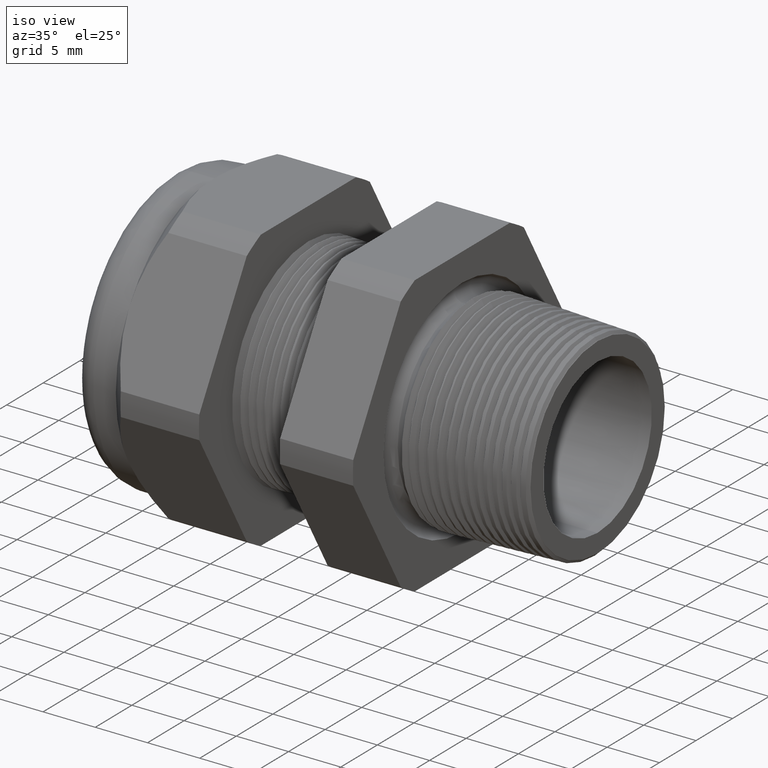
[diagram: clean part render]
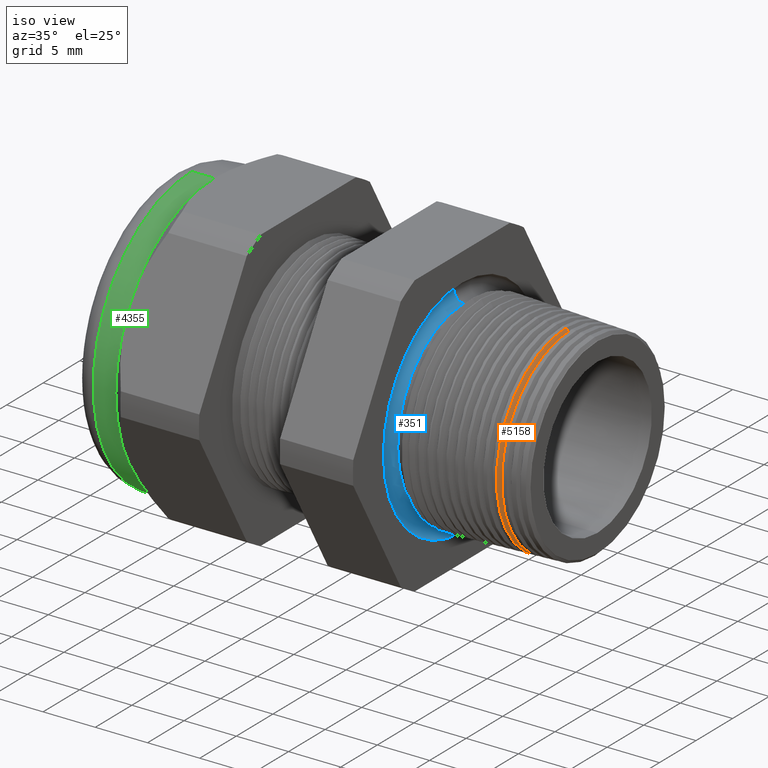
[diagram: same view with three faces highlighted in distinct colors, each labeled with its STEP entity id]
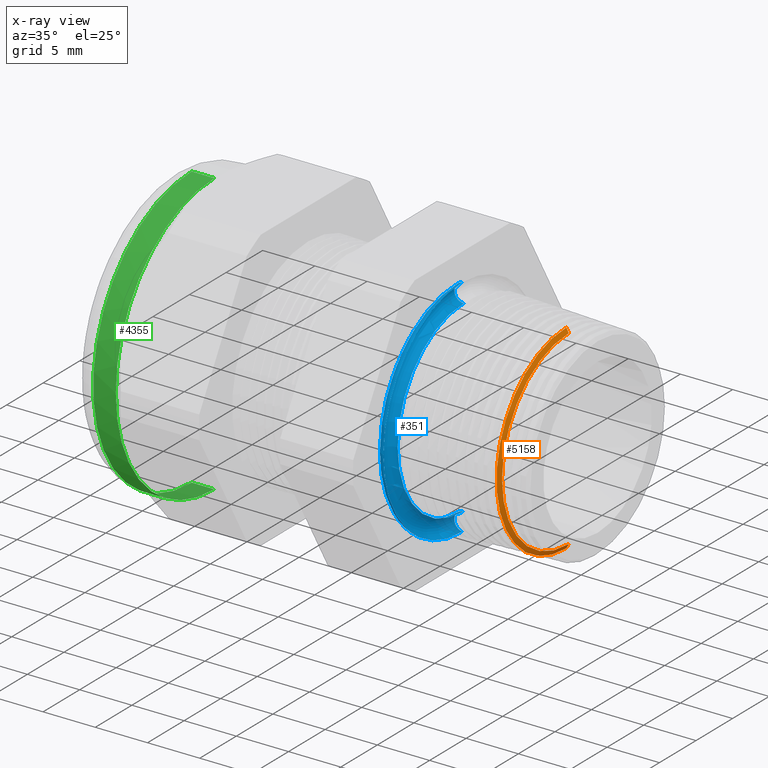
[diagram: x-ray of the same camera — body ghosted, the three highlighted faces saturated]
A machine part, iso view with three faces highlighted in distinct colors.
The next image is the same camera in x-ray (body ghosted, the three faces saturated) — at least one of them is partly hidden behind the body in this view.
Their STEP definitions:

[orange] entity #5158 — the highlighted conical surface has half-angle 62 deg.
#15 = EDGE_CURVE ( 'NONE', #167, #445, #592, .T. ) ;
#94 = EDGE_CURVE ( 'NONE', #377, #167, #667, .T. ) ;
#167 = VERTEX_POINT ( 'NONE', #802 ) ;
#377 = VERTEX_POINT ( 'NONE', #1201 ) ;
#386 = VERTEX_POINT ( 'NONE', #1180 ) ;
#445 = VERTEX_POINT ( 'NONE', #1400 ) ;
#449 = EDGE_CURVE ( 'NONE', #386, #445, #1399, .T. ) ;
#588 = DIRECTION ( 'NONE',  ( 0.0000000000000000000, 0.0000000000000000000, 1.000000000000000000 ) ) ;
#589 = DIRECTION ( 'NONE',  ( 1.000000000000000000, 0.0000000000000000000, 0.0000000000000000000 ) ) ;
#590 = CARTESIAN_POINT ( 'NONE',  ( 0.08228380906208868100, 0.0000000000000000000, 0.0000000000000000000 ) ) ;
#591 = AXIS2_PLACEMENT_3D ( 'NONE', #590, #589, #588 ) ;
#592 = CIRCLE ( 'NONE', #591, 0.3760361025556350800 ) ;
#664 = DIRECTION ( 'NONE',  ( -0.4694715627859021900, 0.0000000000000000000, 0.8829475928589208800 ) ) ;
#665 = VECTOR ( 'NONE', #664, 39.37007874015748100 ) ;
#666 = CARTESIAN_POINT ( 'NONE',  ( 0.07500000000000015000, 0.0000000000000000000, 0.3897349550272340400 ) ) ;
#667 = LINE ( 'NONE', #666, #665 ) ;
#802 = CARTESIAN_POINT ( 'NONE',  ( 0.08228380906208868100, 0.0000000000000000000, 0.3760361025556350800 ) ) ;
#1180 = CARTESIAN_POINT ( 'NONE',  ( 0.09126297198907908100, 4.501708901927134300E-017, -0.3591487532021881400 ) ) ;
#1201 = CARTESIAN_POINT ( 'NONE',  ( 0.09126297198907908100, 0.0000000000000000000, 0.3591487532021881400 ) ) ;
#1396 = DIRECTION ( 'NONE',  ( -0.4694715627859021900, 1.081298943409537900E-016, -0.8829475928589208800 ) ) ;
#1397 = VECTOR ( 'NONE', #1396, 39.37007874015748100 ) ;
#1398 = CARTESIAN_POINT ( 'NONE',  ( 0.07500000000000015000, 4.772876651899397700E-017, -0.3897349550272340400 ) ) ;
#1399 = LINE ( 'NONE', #1398, #1397 ) ;
#1400 = CARTESIAN_POINT ( 'NONE',  ( 0.08228380906208868100, 4.608351048649217600E-017, -0.3760361025556350800 ) ) ;
#3424 = DIRECTION ( 'NONE',  ( 0.0000000000000000000, 0.0000000000000000000, -1.000000000000000000 ) ) ;
#3425 = DIRECTION ( 'NONE',  ( 1.000000000000000000, 0.0000000000000000000, 0.0000000000000000000 ) ) ;
#3426 = AXIS2_PLACEMENT_3D ( 'NONE', #3432, #3425, #3424 ) ;
#3427 = CIRCLE ( 'NONE', #3426, 0.3591487532021881400 ) ;
#3428 = DIRECTION ( 'NONE',  ( 0.0000000000000000000, 0.0000000000000000000, 1.000000000000000000 ) ) ;
#3429 = DIRECTION ( 'NONE',  ( -1.000000000000000000, 0.0000000000000000000, 0.0000000000000000000 ) ) ;
#3430 = AXIS2_PLACEMENT_3D ( 'NONE', #3433, #3429, #3428 ) ;
#3431 = CONICAL_SURFACE ( 'NONE', #3430, 0.3897349550272340400, 1.082104136236471400 ) ;
#3432 = CARTESIAN_POINT ( 'NONE',  ( 0.09126297198907908100, 0.0000000000000000000, 0.0000000000000000000 ) ) ;
#3433 = CARTESIAN_POINT ( 'NONE',  ( 0.07500000000000015000, 0.0000000000000000000, 0.0000000000000000000 ) ) ;
#3439 = FACE_OUTER_BOUND ( 'NONE', #5159, .T. ) ;
#5158 = ADVANCED_FACE ( 'NONE', ( #3439 ), #3431, .T. ) ;
#5159 = EDGE_LOOP ( 'NONE', ( #5160, #5161, #5163, #5164 ) ) ;
#5160 = ORIENTED_EDGE ( 'NONE', *, *, #449, .F. ) ;
#5161 = ORIENTED_EDGE ( 'NONE', *, *, #5162, .F. ) ;
#5162 = EDGE_CURVE ( 'NONE', #377, #386, #3427, .T. ) ;
#5163 = ORIENTED_EDGE ( 'NONE', *, *, #94, .T. ) ;
#5164 = ORIENTED_EDGE ( 'NONE', *, *, #15, .T. ) ;

[blue] entity #351 — the highlighted toroidal blend (fillet) surface has major radius 9.8993 mm and minor (blend) radius 0.889 mm.
#250 = VERTEX_POINT ( 'NONE', #914 ) ;
#291 = EDGE_CURVE ( 'NONE', #306, #363, #1043, .T. ) ;
#292 = ORIENTED_EDGE ( 'NONE', *, *, #297, .F. ) ;
#293 = EDGE_CURVE ( 'NONE', #250, #306, #1038, .T. ) ;
#297 = EDGE_CURVE ( 'NONE', #324, #363, #1021, .T. ) ;
#299 = EDGE_CURVE ( 'NONE', #250, #324, #1015, .T. ) ;
#303 = ORIENTED_EDGE ( 'NONE', *, *, #293, .T. ) ;
#306 = VERTEX_POINT ( 'NONE', #1009 ) ;
#307 = EDGE_LOOP ( 'NONE', ( #352, #303, #362, #292 ) ) ;
#324 = VERTEX_POINT ( 'NONE', #1046 ) ;
#351 = ADVANCED_FACE ( 'NONE', ( #1122 ), #1117, .F. ) ;
#352 = ORIENTED_EDGE ( 'NONE', *, *, #299, .F. ) ;
#362 = ORIENTED_EDGE ( 'NONE', *, *, #291, .T. ) ;
#363 = VERTEX_POINT ( 'NONE', #1159 ) ;
#914 = CARTESIAN_POINT ( 'NONE',  ( -0.3049999999999998300, 4.344250272197825000E-017, 0.3547349550272340700 ) ) ;
#1009 = CARTESIAN_POINT ( 'NONE',  ( -0.3100000000000000000, 5.197106747389359900E-017, 0.4243759711786115300 ) ) ;
#1011 = DIRECTION ( 'NONE',  ( 0.0000000000000000000, 0.0000000000000000000, -1.000000000000000000 ) ) ;
#1012 = DIRECTION ( 'NONE',  ( 1.000000000000000000, 0.0000000000000000000, 0.0000000000000000000 ) ) ;
#1013 = CARTESIAN_POINT ( 'NONE',  ( -0.3049999999999998300, 0.0000000000000000000, 0.0000000000000000000 ) ) ;
#1014 = AXIS2_PLACEMENT_3D ( 'NONE', #1013, #1012, #1011 ) ;
#1015 = CIRCLE ( 'NONE', #1014, 0.3547349550272340700 ) ;
#1018 = DIRECTION ( 'NONE',  ( 0.0000000000000000000, 0.0000000000000000000, -1.000000000000000000 ) ) ;
#1019 = DIRECTION ( 'NONE',  ( 0.0000000000000000000, -1.000000000000000000, 0.0000000000000000000 ) ) ;
#1020 = AXIS2_PLACEMENT_3D ( 'NONE', #1028, #1019, #1018 ) ;
#1021 = CIRCLE ( 'NONE', #1020, 0.03499999999999996900 ) ;
#1028 = CARTESIAN_POINT ( 'NONE',  ( -0.3049999999999998300, 0.0000000000000000000, -0.3897349550272340400 ) ) ;
#1034 = DIRECTION ( 'NONE',  ( 0.0000000000000000000, 1.224646799147352700E-016, 1.000000000000000000 ) ) ;
#1035 = DIRECTION ( 'NONE',  ( 0.0000000000000000000, 1.000000000000000000, -1.224646799147353200E-016 ) ) ;
#1036 = CARTESIAN_POINT ( 'NONE',  ( -0.3049999999999998300, 4.772876651899397700E-017, 0.3897349550272340400 ) ) ;
#1037 = AXIS2_PLACEMENT_3D ( 'NONE', #1036, #1035, #1034 ) ;
#1038 = CIRCLE ( 'NONE', #1037, 0.03499999999999996900 ) ;
#1039 = DIRECTION ( 'NONE',  ( 0.0000000000000000000, 0.0000000000000000000, -1.000000000000000000 ) ) ;
#1040 = DIRECTION ( 'NONE',  ( 1.000000000000000000, 0.0000000000000000000, 0.0000000000000000000 ) ) ;
#1041 = CARTESIAN_POINT ( 'NONE',  ( -0.3100000000000000000, 0.0000000000000000000, 0.0000000000000000000 ) ) ;
#1042 = AXIS2_PLACEMENT_3D ( 'NONE', #1041, #1040, #1039 ) ;
#1043 = CIRCLE ( 'NONE', #1042, 0.4243759711786115300 ) ;
#1046 = CARTESIAN_POINT ( 'NONE',  ( -0.3049999999999998300, 0.0000000000000000000, -0.3547349550272340700 ) ) ;
#1113 = DIRECTION ( 'NONE',  ( 0.0000000000000000000, 0.0000000000000000000, -1.000000000000000000 ) ) ;
#1114 = DIRECTION ( 'NONE',  ( 1.000000000000000000, 0.0000000000000000000, 0.0000000000000000000 ) ) ;
#1115 = CARTESIAN_POINT ( 'NONE',  ( -0.3049999999999998300, 0.0000000000000000000, 0.0000000000000000000 ) ) ;
#1116 = AXIS2_PLACEMENT_3D ( 'NONE', #1115, #1114, #1113 ) ;
#1117 = TOROIDAL_SURFACE ( 'NONE', #1116, 0.3897349550272340400, 0.03499999999999994800 ) ;
#1122 = FACE_OUTER_BOUND ( 'NONE', #307, .T. ) ;
#1159 = CARTESIAN_POINT ( 'NONE',  ( -0.3100000000000000000, 0.0000000000000000000, -0.4243759711786115300 ) ) ;

[green] entity #4355 — the highlighted cylindrical surface (partial cylindrical patch) has radius 13.462 mm, axis along (1, 0, 0).
#2036 = DIRECTION ( 'NONE',  ( 0.0000000000000000000, 0.0000000000000000000, -1.000000000000000000 ) ) ;
#2037 = DIRECTION ( 'NONE',  ( 1.000000000000000000, 0.0000000000000000000, 0.0000000000000000000 ) ) ;
#2038 = CARTESIAN_POINT ( 'NONE',  ( 0.0000000000000000000, 0.0000000000000000000, 0.0000000000000000000 ) ) ;
#2039 = AXIS2_PLACEMENT_3D ( 'NONE', #2038, #2037, #2036 ) ;
#2041 = CYLINDRICAL_SURFACE ( 'NONE', #2039, 0.5299999999999999200 ) ;
#2042 = FACE_OUTER_BOUND ( 'NONE', #4353, .T. ) ;
#2559 = CARTESIAN_POINT ( 'NONE',  ( -1.244645669291338600, 0.0000000000000000000, 0.5300000000000000300 ) ) ;
#3605 = CARTESIAN_POINT ( 'NONE',  ( -1.244645669291338600, -0.4589934640057526900, 0.2649999999999998500 ) ) ;
#3606 = CARTESIAN_POINT ( 'NONE',  ( -1.244645669291338600, -0.4589934640057526900, -0.2650000000000002400 ) ) ;
#3721 = CARTESIAN_POINT ( 'NONE',  ( -1.330000000000000100, 0.0000000000000000000, -0.5299999999999999200 ) ) ;
#3727 = CARTESIAN_POINT ( 'NONE',  ( -1.330000000000000100, 6.490628035480971200E-017, 0.5299999999999999200 ) ) ;
#3752 = DIRECTION ( 'NONE',  ( 0.0000000000000000000, 0.0000000000000000000, 1.000000000000000000 ) ) ;
#3753 = DIRECTION ( 'NONE',  ( 1.000000000000000000, 0.0000000000000000000, 0.0000000000000000000 ) ) ;
#3754 = CARTESIAN_POINT ( 'NONE',  ( -1.330000000000000100, 0.0000000000000000000, 0.0000000000000000000 ) ) ;
#3755 = AXIS2_PLACEMENT_3D ( 'NONE', #3754, #3753, #3752 ) ;
#3756 = CIRCLE ( 'NONE', #3755, 0.5299999999999999200 ) ;
#3757 = DIRECTION ( 'NONE',  ( 0.0000000000000000000, 0.0000000000000000000, -1.000000000000000000 ) ) ;
#3758 = DIRECTION ( 'NONE',  ( 1.000000000000000000, 0.0000000000000000000, 0.0000000000000000000 ) ) ;
#3759 = CARTESIAN_POINT ( 'NONE',  ( -1.244645669291338600, 0.0000000000000000000, 0.0000000000000000000 ) ) ;
#3760 = AXIS2_PLACEMENT_3D ( 'NONE', #3759, #3758, #3757 ) ;
#3761 = CIRCLE ( 'NONE', #3760, 0.5299999999999999200 ) ;
#3762 = DIRECTION ( 'NONE',  ( 0.0000000000000000000, 0.0000000000000000000, -1.000000000000000000 ) ) ;
#3763 = DIRECTION ( 'NONE',  ( 1.000000000000000000, 0.0000000000000000000, 0.0000000000000000000 ) ) ;
#3764 = CARTESIAN_POINT ( 'NONE',  ( -1.244645669291338600, 0.0000000000000000000, 0.0000000000000000000 ) ) ;
#3765 = AXIS2_PLACEMENT_3D ( 'NONE', #3764, #3763, #3762 ) ;
#3766 = CIRCLE ( 'NONE', #3765, 0.5299999999999999200 ) ;
#3767 = DIRECTION ( 'NONE',  ( 0.0000000000000000000, 0.0000000000000000000, -1.000000000000000000 ) ) ;
#3768 = DIRECTION ( 'NONE',  ( 1.000000000000000000, 0.0000000000000000000, 0.0000000000000000000 ) ) ;
#3769 = CARTESIAN_POINT ( 'NONE',  ( -1.244645669291338600, 0.0000000000000000000, 0.0000000000000000000 ) ) ;
#3770 = AXIS2_PLACEMENT_3D ( 'NONE', #3769, #3768, #3767 ) ;
#3771 = CIRCLE ( 'NONE', #3770, 0.5299999999999999200 ) ;
#3920 = DIRECTION ( 'NONE',  ( 1.000000000000000000, 0.0000000000000000000, 0.0000000000000000000 ) ) ;
#3921 = VECTOR ( 'NONE', #3920, 39.37007874015748100 ) ;
#3922 = CARTESIAN_POINT ( 'NONE',  ( 0.0000000000000000000, 6.490628035480971200E-017, 0.5299999999999999200 ) ) ;
#3923 = LINE ( 'NONE', #3922, #3921 ) ;
#3945 = DIRECTION ( 'NONE',  ( 1.000000000000000000, 0.0000000000000000000, 0.0000000000000000000 ) ) ;
#3946 = VECTOR ( 'NONE', #3945, 39.37007874015748100 ) ;
#3947 = CARTESIAN_POINT ( 'NONE',  ( 0.0000000000000000000, 0.0000000000000000000, -0.5299999999999999200 ) ) ;
#3948 = LINE ( 'NONE', #3947, #3946 ) ;
#3993 = CARTESIAN_POINT ( 'NONE',  ( -1.244645669291338600, 0.0000000000000000000, -0.5300000000000001400 ) ) ;
#4353 = EDGE_LOOP ( 'NONE', ( #5339, #5340, #5335, #5332, #5333, #5330 ) ) ;
#4355 = ADVANCED_FACE ( 'NONE', ( #2042 ), #2041, .T. ) ;
#4628 = VERTEX_POINT ( 'NONE', #2559 ) ;
#5259 = VERTEX_POINT ( 'NONE', #3606 ) ;
#5261 = VERTEX_POINT ( 'NONE', #3605 ) ;
#5320 = VERTEX_POINT ( 'NONE', #3727 ) ;
#5323 = VERTEX_POINT ( 'NONE', #3721 ) ;
#5329 = EDGE_CURVE ( 'NONE', #4628, #5261, #3771, .T. ) ;
#5330 = ORIENTED_EDGE ( 'NONE', *, *, #5329, .F. ) ;
#5331 = EDGE_CURVE ( 'NONE', #5261, #5259, #3766, .T. ) ;
#5332 = ORIENTED_EDGE ( 'NONE', *, *, #5334, .F. ) ;
#5333 = ORIENTED_EDGE ( 'NONE', *, *, #5331, .F. ) ;
#5334 = EDGE_CURVE ( 'NONE', #5259, #5454, #3761, .T. ) ;
#5335 = ORIENTED_EDGE ( 'NONE', *, *, #5444, .T. ) ;
#5338 = EDGE_CURVE ( 'NONE', #5320, #5323, #3756, .T. ) ;
#5339 = ORIENTED_EDGE ( 'NONE', *, *, #5424, .F. ) ;
#5340 = ORIENTED_EDGE ( 'NONE', *, *, #5338, .T. ) ;
#5424 = EDGE_CURVE ( 'NONE', #5320, #4628, #3923, .T. ) ;
#5444 = EDGE_CURVE ( 'NONE', #5323, #5454, #3948, .T. ) ;
#5454 = VERTEX_POINT ( 'NONE', #3993 ) ;